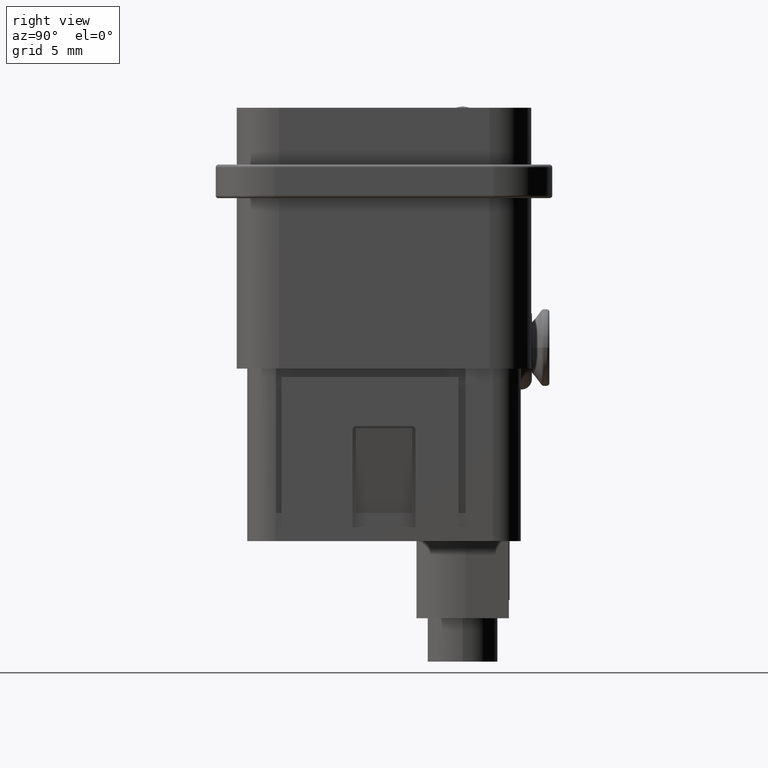
[diagram: clean part render]
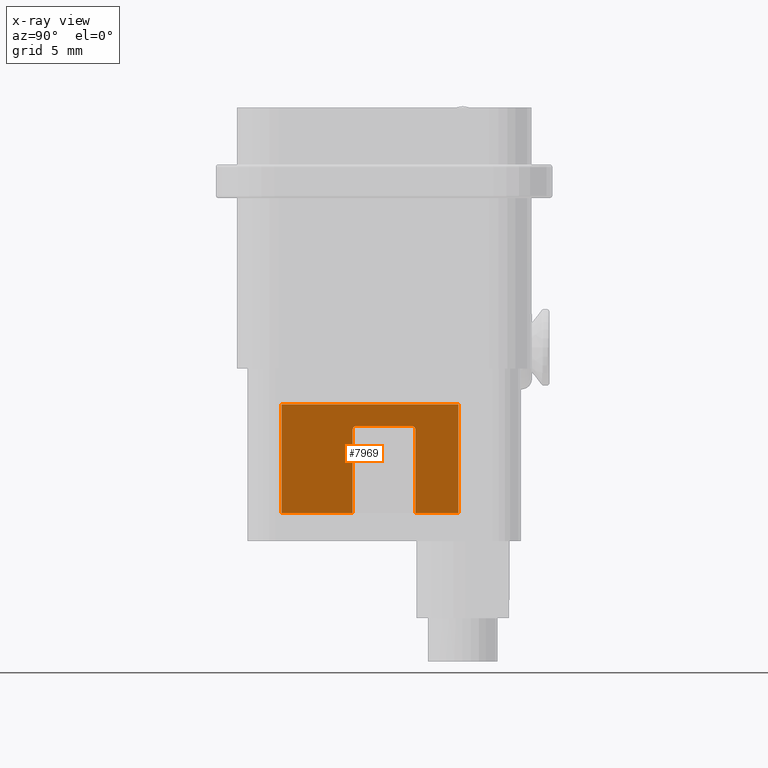
[diagram: x-ray — body ghosted, one internal face saturated and labeled with its STEP entity id]
A machine part, right view, then the same camera in x-ray: the body is ghosted and one INTERNAL B-rep face — a face not visible from any outside direction — is saturated and labeled: STEP entity #7969.
In plain terms, the highlighted planar face has unit normal (-1, 0, 0).
Its self-contained STEP definition (entity closure, byte-faithful):
#1307=DIRECTION('',(0.E0,1.E0,0.E0));
#1308=VECTOR('',#1307,5.05E0);
#1309=CARTESIAN_POINT('',(-9.2E0,-7.3E0,-1.E-1));
#1310=LINE('',#1309,#1308);
#1315=DIRECTION('',(0.E0,1.E0,0.E0));
#1316=VECTOR('',#1315,3.05E0);
#1317=CARTESIAN_POINT('',(-9.2E0,2.25E0,-1.E-1));
#1318=LINE('',#1317,#1316);
#3000=DIRECTION('',(0.E0,0.E0,-1.E0));
#3001=VECTOR('',#3000,7.736149463537E0);
#3002=CARTESIAN_POINT('',(-9.2E0,-7.3E0,7.636149463537E0));
#3003=LINE('',#3002,#3001);
#3021=DIRECTION('',(0.E0,0.E0,-1.E0));
#3022=VECTOR('',#3021,7.736149463537E0);
#3023=CARTESIAN_POINT('',(-9.2E0,5.3E0,7.636149463537E0));
#3024=LINE('',#3023,#3022);
#3025=CARTESIAN_POINT('',(-9.2E0,1.95E0,5.8E0));
#3026=DIRECTION('',(1.E0,0.E0,0.E0));
#3027=DIRECTION('',(0.E0,1.E0,0.E0));
#3028=AXIS2_PLACEMENT_3D('',#3025,#3026,#3027);
#3030=CARTESIAN_POINT('',(-9.2E0,-1.95E0,5.8E0));
#3031=DIRECTION('',(1.E0,0.E0,0.E0));
#3032=DIRECTION('',(0.E0,0.E0,1.E0));
#3033=AXIS2_PLACEMENT_3D('',#3030,#3031,#3032);
#3035=DIRECTION('',(0.E0,0.E0,-1.E0));
#3036=VECTOR('',#3035,5.9E0);
#3037=CARTESIAN_POINT('',(-9.2E0,2.25E0,5.8E0));
#3038=LINE('',#3037,#3036);
#3051=DIRECTION('',(0.E0,0.E0,1.E0));
#3052=VECTOR('',#3051,5.9E0);
#3053=CARTESIAN_POINT('',(-9.2E0,-2.25E0,-1.E-1));
#3054=LINE('',#3053,#3052);
#3093=DIRECTION('',(0.E0,1.E0,0.E0));
#3094=VECTOR('',#3093,3.9E0);
#3095=CARTESIAN_POINT('',(-9.2E0,-1.95E0,6.1E0));
#3096=LINE('',#3095,#3094);
#3113=DIRECTION('',(0.E0,-1.E0,0.E0));
#3114=VECTOR('',#3113,1.26E1);
#3115=CARTESIAN_POINT('',(-9.2E0,5.3E0,7.636149463537E0));
#3116=LINE('',#3115,#3114);
#3623=CARTESIAN_POINT('',(-9.2E0,-7.3E0,-1.E-1));
#3625=VERTEX_POINT('',#3623);
#3626=CARTESIAN_POINT('',(-9.2E0,-2.25E0,-1.E-1));
#3627=VERTEX_POINT('',#3626);
#3628=CARTESIAN_POINT('',(-9.2E0,2.25E0,-1.E-1));
#3629=VERTEX_POINT('',#3628);
#3630=CARTESIAN_POINT('',(-9.2E0,5.3E0,-1.E-1));
#3631=VERTEX_POINT('',#3630);
#3846=CARTESIAN_POINT('',(-9.2E0,5.3E0,7.636149463537E0));
#3847=VERTEX_POINT('',#3846);
#3852=CARTESIAN_POINT('',(-9.2E0,-7.3E0,7.636149463537E0));
#3853=VERTEX_POINT('',#3852);
#3856=CARTESIAN_POINT('',(-9.2E0,2.25E0,5.8E0));
#3857=VERTEX_POINT('',#3856);
#3858=CARTESIAN_POINT('',(-9.2E0,1.95E0,6.1E0));
#3859=VERTEX_POINT('',#3858);
#3860=CARTESIAN_POINT('',(-9.2E0,-1.95E0,6.1E0));
#3861=VERTEX_POINT('',#3860);
#3862=CARTESIAN_POINT('',(-9.2E0,-2.25E0,5.8E0));
#3863=VERTEX_POINT('',#3862);
#7946=CARTESIAN_POINT('',(-9.2E0,5.3E0,9.6E0));
#7947=DIRECTION('',(-1.E0,0.E0,0.E0));
#7948=DIRECTION('',(0.E0,-1.E0,0.E0));
#7949=AXIS2_PLACEMENT_3D('',#7946,#7947,#7948);
#7950=PLANE('',#7949);
#7951=ORIENTED_EDGE('',*,*,#7904,.T.);
#7952=ORIENTED_EDGE('',*,*,#6019,.F.);
#7954=ORIENTED_EDGE('',*,*,#7953,.F.);
#7956=ORIENTED_EDGE('',*,*,#7955,.T.);
#7958=ORIENTED_EDGE('',*,*,#7957,.F.);
#7960=ORIENTED_EDGE('',*,*,#7959,.T.);
#7962=ORIENTED_EDGE('',*,*,#7961,.F.);
#7963=ORIENTED_EDGE('',*,*,#6015,.F.);
#7964=ORIENTED_EDGE('',*,*,#7931,.F.);
#7966=ORIENTED_EDGE('',*,*,#7965,.F.);
#7967=EDGE_LOOP('',(#7951,#7952,#7954,#7956,#7958,#7960,#7962,#7963,#7964,
#7966));
#7968=FACE_OUTER_BOUND('',#7967,.F.);
#7969=ADVANCED_FACE('',(#7968),#7950,.F.);
#3029=CIRCLE('',#3028,3.E-1);
#3034=CIRCLE('',#3033,3.E-1);
#6015=EDGE_CURVE('',#3625,#3627,#1310,.T.);
#6019=EDGE_CURVE('',#3629,#3631,#1318,.T.);
#7904=EDGE_CURVE('',#3847,#3631,#3024,.T.);
#7931=EDGE_CURVE('',#3853,#3625,#3003,.T.);
#7953=EDGE_CURVE('',#3857,#3629,#3038,.T.);
#7955=EDGE_CURVE('',#3857,#3859,#3029,.T.);
#7957=EDGE_CURVE('',#3861,#3859,#3096,.T.);
#7959=EDGE_CURVE('',#3861,#3863,#3034,.T.);
#7961=EDGE_CURVE('',#3627,#3863,#3054,.T.);
#7965=EDGE_CURVE('',#3847,#3853,#3116,.T.);